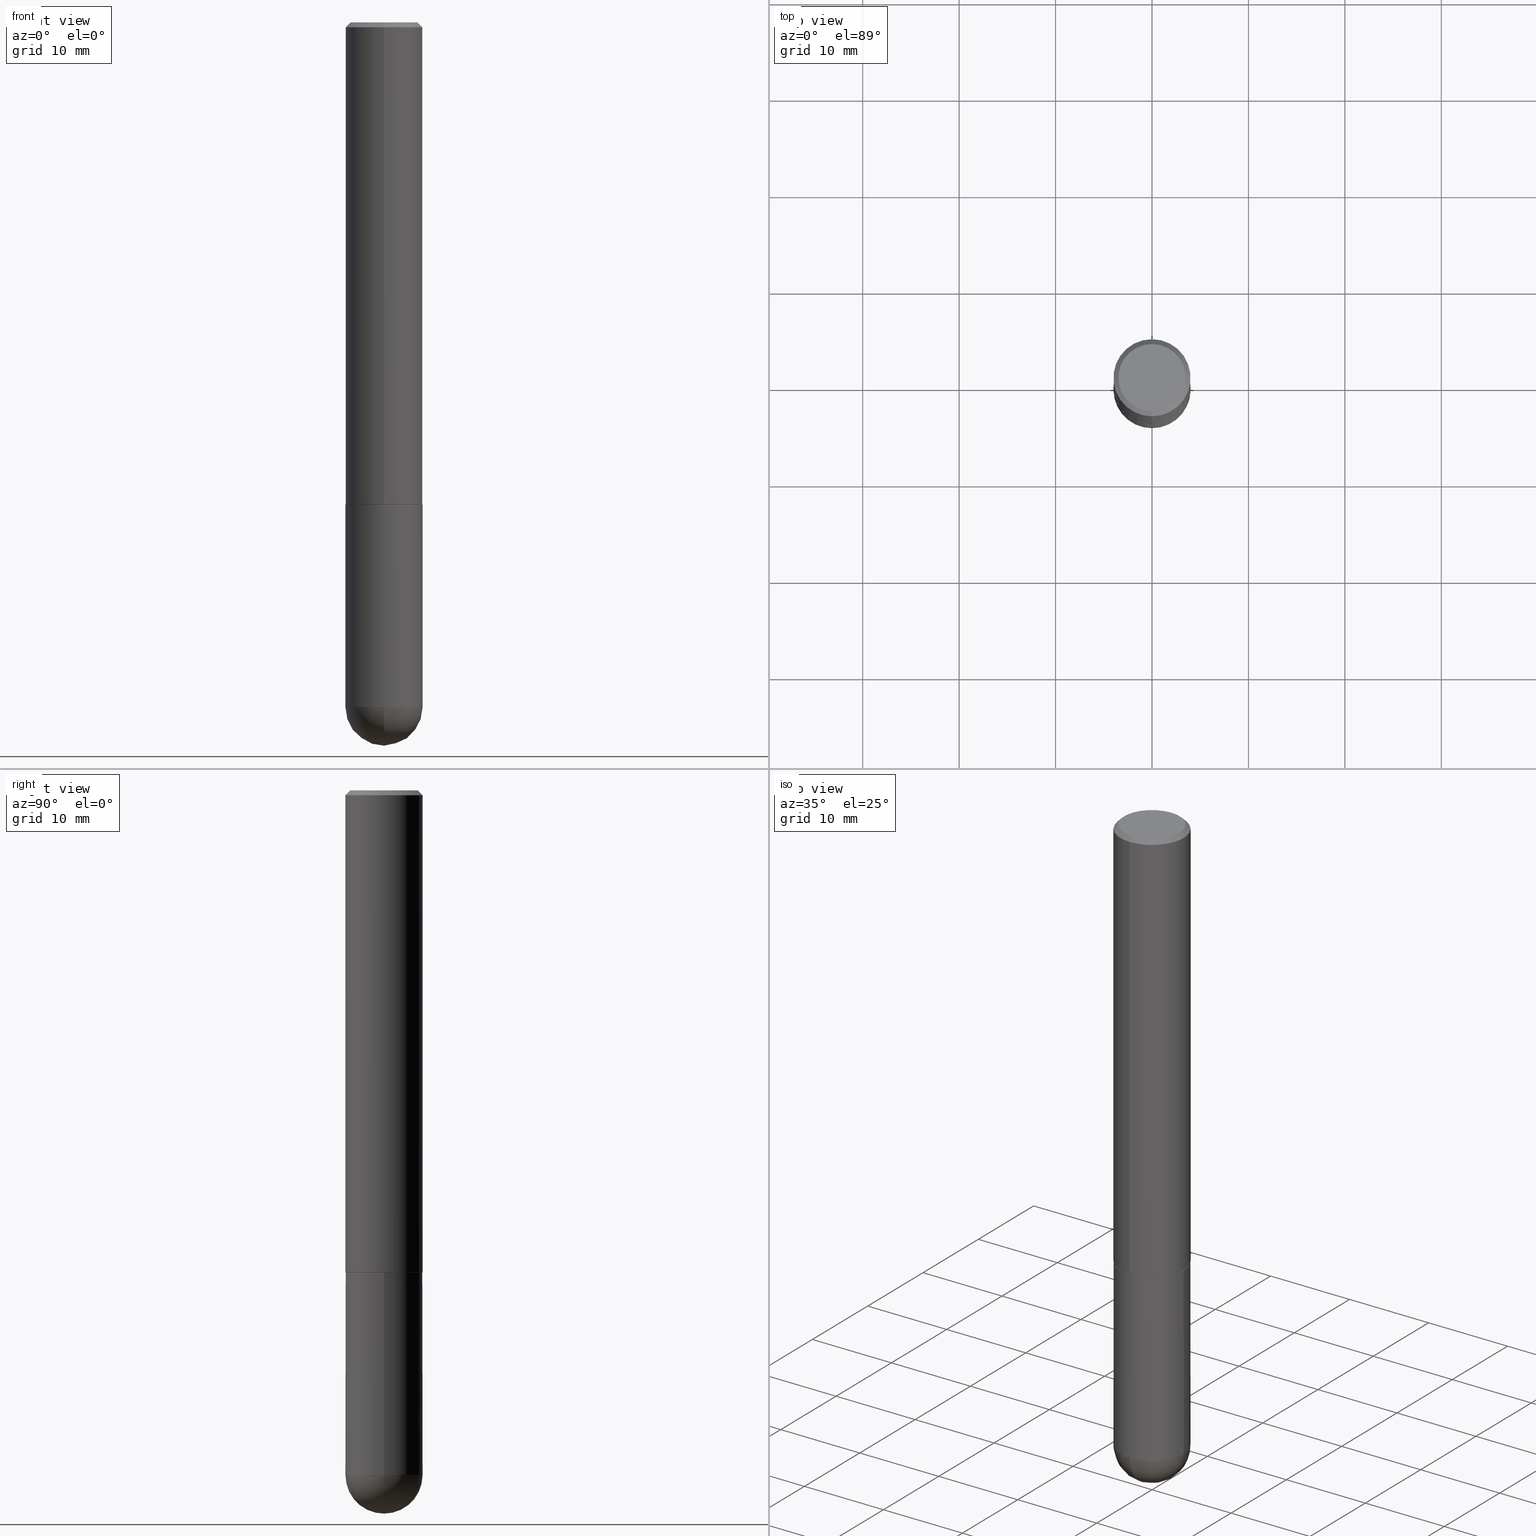
[diagram: canonical four-view strip — front | top / right | iso, engineering-drawing reading convention]
A machine part, canonical four-view strip (front | top / right | iso — engineering-drawing reading convention). The complete STEP part file that produces these views, byte-faithful:
ISO-10303-21;
HEADER;
FILE_DESCRIPTION (( 'STEP AP203' ),
    '1' );
FILE_NAME ('70535.STEP',
    '2024-04-10T12:34:35',
    ( '' ),
    ( '' ),
    'SwSTEP 2.0',
    'SolidWorks 2023',
    '' );
FILE_SCHEMA (( 'CONFIG_CONTROL_DESIGN' ));
ENDSEC;

DATA;
#1 = AXIS2_PLACEMENT_3D ( 'NONE', #222, #130, #410 ) ;
#2 = COORDINATED_UNIVERSAL_TIME_OFFSET ( 5, 0, .BEHIND. ) ;
#3 = DIRECTION ( 'NONE',  ( -2.454661074152089195E-29, 3.478317487923067824E-15, 1.000000000000000000 ) ) ;
#4 = DIRECTION ( 'NONE',  ( -2.454661074152089475E-29, 3.478317487923067824E-15, 1.000000000000000000 ) ) ;
#5 = EDGE_CURVE ( 'NONE', #244, #315, #240, .T. ) ;
#6 = LINE ( 'NONE', #11, #113 ) ;
#7 = CARTESIAN_POINT ( 'NONE',  ( 6.730951768431413431E-46, -9.537930711916713162E-32, -2.742110444211316312E-17 ) ) ;
#8 = ORIENTED_EDGE ( 'NONE', *, *, #33, .T. ) ;
#9 = DIRECTION ( 'NONE',  ( 6.982962677686265922E-15, 1.000000000000000000, -3.469013325287946588E-15 ) ) ;
#10 = COORDINATED_UNIVERSAL_TIME_OFFSET ( 5, 0, .BEHIND. ) ;
#11 = CARTESIAN_POINT ( 'NONE',  ( -0.1575000000000000011, 1.119104808822157801E-15, -7.747322767151475583E-30 ) ) ;
#12 = DIRECTION ( 'NONE',  ( -2.454661074152089475E-29, 3.478317487923067824E-15, 1.000000000000000000 ) ) ;
#13 = ADVANCED_FACE ( 'NONE', ( #74 ), #187, .T. ) ;
#14 = ADVANCED_FACE ( 'NONE', ( #236 ), #273, .T. ) ;
#15 = DIRECTION ( 'NONE',  ( -2.454661074152089475E-29, 3.478317487923067824E-15, 1.000000000000000000 ) ) ;
#16 = DIRECTION ( 'NONE',  ( -6.982962677686264344E-15, -1.000000000000000000, 3.478317487923067824E-15 ) ) ;
#17 = DIRECTION ( 'NONE',  ( -2.454661074152089475E-29, 3.478317487923067824E-15, 1.000000000000000000 ) ) ;
#18 = AXIS2_PLACEMENT_3D ( 'NONE', #310, #208, #334 ) ;
#19 = AXIS2_PLACEMENT_3D ( 'NONE', #387, #230, #167 ) ;
#20 = ORIENTED_EDGE ( 'NONE', *, *, #337, .T. ) ;
#21 = ORIENTED_EDGE ( 'NONE', *, *, #359, .T. ) ;
#22 = DIRECTION ( 'NONE',  ( -2.445468806185136597E-29, 3.491481338843145583E-15, 1.000000000000000000 ) ) ;
#23 = ORIENTED_EDGE ( 'NONE', *, *, #33, .F. ) ;
#24 = EDGE_CURVE ( 'NONE', #49, #247, #154, .T. ) ;
#25 = FACE_OUTER_BOUND ( 'NONE', #248, .T. ) ;
#26 = AXIS2_PLACEMENT_3D ( 'NONE', #221, #263, #116 ) ;
#27 = ADVANCED_FACE ( 'NONE', ( #373 ), #301, .T. ) ;
#28 = LOCAL_TIME ( 8, 34, 35.00000000000000000, #381 ) ;
#29 = ORIENTED_EDGE ( 'NONE', *, *, #391, .T. ) ;
#30 = CARTESIAN_POINT ( 'NONE',  ( 1.099816621735586889E-15, 0.1574999999999998901, -0.02000000000000057981 ) ) ;
#31 = CIRCLE ( 'NONE', #265, 0.1575000000000003064 ) ;
#32 = AXIS2_PLACEMENT_3D ( 'NONE', #83, #384, #331 ) ;
#33 = EDGE_CURVE ( 'NONE', #313, #139, #196, .T. ) ;
#34 = CARTESIAN_POINT ( 'NONE',  ( 6.835818953929311707E-29, -9.759737786468243605E-15, -2.795299999999999674 ) ) ;
#35 = PERSON_AND_ORGANIZATION_ROLE ( 'classification_officer' ) ;
#36 = CARTESIAN_POINT ( 'NONE',  ( 1.099816621735654731E-15, 0.1574999999999901201, -2.795300000000000118 ) ) ;
#37 = ORIENTED_EDGE ( 'NONE', *, *, #242, .T. ) ;
#38 = CC_DESIGN_PERSON_AND_ORGANIZATION_ASSIGNMENT ( #256, #226, ( #232 ) ) ;
#39 = CLOSED_SHELL ( 'NONE', ( #357, #97, #129, #193, #27, #14, #375, #361 ) ) ;
#40 = SHAPE_DEFINITION_REPRESENTATION ( #319, #158 ) ;
#41 = DIRECTION ( 'NONE',  ( -2.445468806185136597E-29, 3.491481338843145583E-15, 1.000000000000000000 ) ) ;
#42 = DIRECTION ( 'NONE',  ( -6.982962677686267499E-15, -1.000000000000000000, 3.491179544618867914E-15 ) ) ;
#43 = PERSON_AND_ORGANIZATION_ROLE ( 'creator' ) ;
#44 = FACE_OUTER_BOUND ( 'NONE', #352, .T. ) ;
#45 = ORIENTED_EDGE ( 'NONE', *, *, #380, .F. ) ;
#46 = CARTESIAN_POINT ( 'NONE',  ( -1.011923454671300448E-15, -0.1375000000000000111, 4.508475501473086973E-16 ) ) ;
#47 = COORDINATED_UNIVERSAL_TIME_OFFSET ( 5, 0, .BEHIND. ) ;
#48 = CARTESIAN_POINT ( 'NONE',  ( 1.115552095143405811E-15, 0.1564999999999930891, -1.968500000000000583 ) ) ;
#49 = VERTEX_POINT ( 'NONE', #281 ) ;
#50 = FACE_OUTER_BOUND ( 'NONE', #162, .T. ) ;
#51 = CIRCLE ( 'NONE', #104, 0.1575000000000001954 ) ;
#52 = CARTESIAN_POINT ( 'NONE',  ( -1.099816621735539951E-15, -0.1575000000000070233, -1.967499999999999138 ) ) ;
#53 = APPROVAL_PERSON_ORGANIZATION ( #114, #305, #348 ) ;
#54 = CARTESIAN_POINT ( 'NONE',  ( 4.829545663394234809E-29, -6.843589657488634193E-15, -1.967499999999999805 ) ) ;
#55 = UNCERTAINTY_MEASURE_WITH_UNIT (LENGTH_MEASURE( 1.000000000000000082E-05 ), #253, 'distance_accuracy_value', 'NONE');
#56 = CARTESIAN_POINT ( 'NONE',  ( -0.1575000000000000011, -7.197254592168330052E-15, -2.795299999999999674 ) ) ;
#57 = ORIENTED_EDGE ( 'NONE', *, *, #364, .T. ) ;
#58 = AXIS2_PLACEMENT_3D ( 'NONE', #385, #100, #231 ) ;
#59 = VERTEX_POINT ( 'NONE', #383 ) ;
#60 = CYLINDRICAL_SURFACE ( 'NONE', #112, 0.1575000000000000011 ) ;
#61 = CC_DESIGN_DATE_AND_TIME_ASSIGNMENT ( #297, #261, ( #398 ) ) ;
#62 = CARTESIAN_POINT ( 'NONE',  ( 4.909322148304186412E-31, -6.956634975846147087E-17, -0.02000000000000003511 ) ) ;
#63 = ORIENTED_EDGE ( 'NONE', *, *, #246, .T. ) ;
#64 =( LENGTH_UNIT ( ) NAMED_UNIT ( * ) SI_UNIT ( $, .METRE. ) );
#65 = AXIS2_PLACEMENT_3D ( 'NONE', #170, #356, #389 ) ;
#66 = ORIENTED_EDGE ( 'NONE', *, *, #391, .F. ) ;
#67 = EDGE_CURVE ( 'NONE', #405, #111, #395, .T. ) ;
#68 = PERSON_AND_ORGANIZATION ( #94, #91 ) ;
#69 = DIRECTION ( 'NONE',  ( -2.454661074152089475E-29, 3.478317487923067824E-15, 1.000000000000000000 ) ) ;
#70 = CIRCLE ( 'NONE', #300, 0.1575000000000000011 ) ;
#71 = PERSON_AND_ORGANIZATION ( #94, #91 ) ;
#72 = DIRECTION ( 'NONE',  ( -2.454661074152089475E-29, 3.478317487923067824E-15, 1.000000000000000000 ) ) ;
#73 = EDGE_CURVE ( 'NONE', #313, #147, #90, .T. ) ;
#74 = FACE_OUTER_BOUND ( 'NONE', #121, .T. ) ;
#75 = DATE_AND_TIME ( #320, #105 ) ;
#76 = EDGE_LOOP ( 'NONE', ( #369, #21, #308, #329, #366 ) ) ;
#77 = CONICAL_SURFACE ( 'NONE', #306, 0.1574999999999999456, 0.7853981633974471688 ) ;
#78 = DATE_TIME_ROLE ( 'classification_date' ) ;
#79 = DIRECTION ( 'NONE',  ( -2.445468806185136597E-29, 3.491481338843145583E-15, 1.000000000000000000 ) ) ;
#80 = DIRECTION ( 'NONE',  ( -2.445468806185136597E-29, 3.491481338843145583E-15, 1.000000000000000000 ) ) ;
#81 = MANIFOLD_SOLID_BREP ( 'Body-Move/Copy2[1]', #179 ) ;
#82 = FACE_OUTER_BOUND ( 'NONE', #349, .T. ) ;
#83 = CARTESIAN_POINT ( 'NONE',  ( 9.601573681818614755E-16, 0.1375000000000000111, -4.919792068104783803E-16 ) ) ;
#84 = LINE ( 'NONE', #143, #141 ) ;
#85 = VECTOR ( 'NONE', #393, 39.37007874015748143 ) ;
#86 = APPROVAL_PERSON_ORGANIZATION ( #341, #286, #103 ) ;
#87 = PLANE ( 'NONE',  #18 ) ;
#88 = EDGE_CURVE ( 'NONE', #147, #95, #199, .T. ) ;
#89 = EDGE_LOOP ( 'NONE', ( #220, #63, #29, #128 ) ) ;
#90 = CIRCLE ( 'NONE', #217, 0.1375000000000000111 ) ;
#91 = ORGANIZATION ( 'UNSPECIFIED', 'UNSPECIFIED', '' ) ;
#92 = EDGE_CURVE ( 'NONE', #95, #139, #171, .T. ) ;
#93 = ORIENTED_EDGE ( 'NONE', *, *, #364, .F. ) ;
#94 = PERSON ( 'UNSPECIFIED', 'UNSPECIFIED', 'UNSPECIFIED', ('UNSPECIFIED'), ('UNSPECIFIED'), ('UNSPECIFIED') ) ;
#95 = VERTEX_POINT ( 'NONE', #200 ) ;
#96 = APPLICATION_PROTOCOL_DEFINITION ( 'international standard', 'config_control_design', 1994, #178 ) ;
#97 = ADVANCED_FACE ( 'NONE', ( #82 ), #183, .T. ) ;
#98 = CARTESIAN_POINT ( 'NONE',  ( 0.1575000000000000011, -1.099816621735586889E-15, 7.679978421878598033E-30 ) ) ;
#99 = CONICAL_SURFACE ( 'NONE', #145, 0.1564999999999999447, 0.7853981633973970977 ) ;
#100 = DIRECTION ( 'NONE',  ( -2.445468806185136597E-29, 3.491481338843145583E-15, 1.000000000000000000 ) ) ;
#101 = DIRECTION ( 'NONE',  ( 4.937700262164541731E-15, 0.7071067811865442421, -0.7071067811865507924 ) ) ;
#102 = MECHANICAL_CONTEXT ( 'NONE', #314, 'mechanical' ) ;
#103 = APPROVAL_ROLE ( '' ) ;
#104 = AXIS2_PLACEMENT_3D ( 'NONE', #269, #298, #292 ) ;
#105 = LOCAL_TIME ( 8, 34, 35.00000000000000000, #47 ) ;
#106 = DATE_AND_TIME ( #190, #302 ) ;
#107 = DIRECTION ( 'NONE',  ( -6.982962677686265922E-15, -1.000000000000000000, 3.478317487923067824E-15 ) ) ;
#108 = DIRECTION ( 'NONE',  ( -6.982962677686264344E-15, -1.000000000000000000, 3.478317487923067824E-15 ) ) ;
#109 = APPROVAL_STATUS ( 'not_yet_approved' ) ;
#110 = LINE ( 'NONE', #289, #225 ) ;
#111 = VERTEX_POINT ( 'NONE', #238 ) ;
#112 = AXIS2_PLACEMENT_3D ( 'NONE', #118, #271, #330 ) ;
#113 = VECTOR ( 'NONE', #382, 39.37007874015748143 ) ;
#114 = PERSON_AND_ORGANIZATION ( #94, #91 ) ;
#115 = FACE_OUTER_BOUND ( 'NONE', #335, .T. ) ;
#116 = DIRECTION ( 'NONE',  ( 6.982962677686265922E-15, 1.000000000000000000, -3.469013325287946588E-15 ) ) ;
#117 = DIRECTION ( 'NONE',  ( 1.000000000000000000, -6.982962677686265922E-15, 4.883557194083112340E-29 ) ) ;
#118 = CARTESIAN_POINT ( 'NONE',  ( 0.000000000000000000, 0.000000000000000000, 0.000000000000000000 ) ) ;
#119 = LINE ( 'NONE', #241, #277 ) ;
#120 = CC_DESIGN_APPROVAL ( #305, ( #232 ) ) ;
#121 = EDGE_LOOP ( 'NONE', ( #45, #270, #406, #131 ) ) ;
#122 = EDGE_CURVE ( 'NONE', #147, #313, #149, .T. ) ;
#123 = ORIENTED_EDGE ( 'NONE', *, *, #299, .T. ) ;
#124 = FACE_OUTER_BOUND ( 'NONE', #76, .T. ) ;
#125 = CARTESIAN_POINT ( 'NONE',  ( 4.909322148304186412E-31, -6.956634975846147087E-17, -0.02000000000000003511 ) ) ;
#126 = ORIENTED_EDGE ( 'NONE', *, *, #251, .T. ) ;
#127 = DIRECTION ( 'NONE',  ( -2.445468806185136877E-29, 3.491481338843145188E-15, 1.000000000000000000 ) ) ;
#128 = ORIENTED_EDGE ( 'NONE', *, *, #223, .F. ) ;
#129 = ADVANCED_FACE ( 'NONE', ( #25 ), #317, .T. ) ;
#130 = DIRECTION ( 'NONE',  ( 0.000000000000000000, 0.000000000000000000, 1.000000000000000000 ) ) ;
#131 = ORIENTED_EDGE ( 'NONE', *, *, #337, .F. ) ;
#132 = CARTESIAN_POINT ( 'NONE',  ( 1.029986994958724182E-15, 0.1375000000000000111, -5.056897590315349742E-16 ) ) ;
#133 = ORIENTED_EDGE ( 'NONE', *, *, #237, .F. ) ;
#134 = CC_DESIGN_PERSON_AND_ORGANIZATION_ASSIGNMENT ( #164, #43, ( #398 ) ) ;
#135 = CALENDAR_DATE ( 2024, 10, 4 ) ;
#136 = APPROVAL_ROLE ( '' ) ;
#137 = ORIENTED_EDGE ( 'NONE', *, *, #67, .F. ) ;
#138 = FACE_OUTER_BOUND ( 'NONE', #362, .T. ) ;
#139 = VERTEX_POINT ( 'NONE', #360 ) ;
#140 = ORIENTED_EDGE ( 'NONE', *, *, #92, .T. ) ;
#141 = VECTOR ( 'NONE', #279, 39.37007874015748143 ) ;
#142 = ORIENTED_EDGE ( 'NONE', *, *, #251, .F. ) ;
#143 = CARTESIAN_POINT ( 'NONE',  ( 1.119104808822158195E-15, 0.1575000000000000844, -5.478350043478835531E-16 ) ) ;
#144 = CARTESIAN_POINT ( 'NONE',  ( 6.504699176015425459E-29, -1.023392015460829390E-14, -2.795299999999999674 ) ) ;
#145 = AXIS2_PLACEMENT_3D ( 'NONE', #257, #72, #160 ) ;
#146 = ORIENTED_EDGE ( 'NONE', *, *, #325, .T. ) ;
#147 = VERTEX_POINT ( 'NONE', #46 ) ;
#148 = DIRECTION ( 'NONE',  ( 1.000000000000000000, -6.982962677686268288E-15, 0.000000000000000000 ) ) ;
#149 = CIRCLE ( 'NONE', #323, 0.1375000000000000111 ) ;
#150 = DIRECTION ( 'NONE',  ( -1.000000000000000000, 6.982962677686265922E-15, -4.883557194083112901E-29 ) ) ;
#151 = ADVANCED_FACE ( 'NONE', ( #311 ), #275, .T. ) ;
#152 = EDGE_LOOP ( 'NONE', ( #274, #372, #8, #278 ) ) ;
#153 = ORIENTED_EDGE ( 'NONE', *, *, #214, .T. ) ;
#154 = CIRCLE ( 'NONE', #58, 0.1575000000000000011 ) ;
#155 = LOCAL_TIME ( 8, 34, 35.00000000000000000, #10 ) ;
#156 = ADVANCED_FACE ( 'NONE', ( #50 ), #87, .F. ) ;
#157 = DATE_AND_TIME ( #322, #28 ) ;
#158 = ADVANCED_BREP_SHAPE_REPRESENTATION ( '70535', ( #81, #346, #1 ), #258 ) ;
#159 = PERSON_AND_ORGANIZATION ( #94, #91 ) ;
#160 = DIRECTION ( 'NONE',  ( -6.982962677686267499E-15, -1.000000000000000000, 3.491179544618867914E-15 ) ) ;
#161 = VECTOR ( 'NONE', #101, 39.37007874015748143 ) ;
#162 = EDGE_LOOP ( 'NONE', ( #216, #126 ) ) ;
#163 = CIRCLE ( 'NONE', #284, 0.1575000000000003064 ) ;
#164 = PERSON_AND_ORGANIZATION ( #94, #91 ) ;
#165 = DIRECTION ( 'NONE',  ( 1.000000000000000000, -6.982962677686261977E-15, 0.000000000000000000 ) ) ;
#166 = CARTESIAN_POINT ( 'NONE',  ( 6.835818953929311707E-29, -9.759737786468243605E-15, -2.795299999999999674 ) ) ;
#167 = DIRECTION ( 'NONE',  ( 1.000000000000000000, -6.982962677686261977E-15, 0.000000000000000000 ) ) ;
#168 = VERTEX_POINT ( 'NONE', #172 ) ;
#169 = CARTESIAN_POINT ( 'NONE',  ( 6.730951768431413431E-46, -9.537930711916713162E-32, -2.742110444211316312E-17 ) ) ;
#170 = CARTESIAN_POINT ( 'NONE',  ( 4.832000324468388368E-29, -6.847067974976558820E-15, -1.968500000000000139 ) ) ;
#171 = CIRCLE ( 'NONE', #312, 0.1574999999999999456 ) ;
#172 = CARTESIAN_POINT ( 'NONE',  ( 0.1575000000000000011, -9.416176022726072770E-15, -2.795299999999999674 ) ) ;
#173 = AXIS2_PLACEMENT_3D ( 'NONE', #34, #285, #184 ) ;
#174 = CIRCLE ( 'NONE', #365, 0.1575000000000000011 ) ;
#175 = PLANE ( 'NONE',  #377 ) ;
#176 = CC_DESIGN_PERSON_AND_ORGANIZATION_ASSIGNMENT ( #71, #234, ( #232 ) ) ;
#177 = DIRECTION ( 'NONE',  ( -2.454661074152089475E-29, 3.478317487923067824E-15, 1.000000000000000000 ) ) ;
#178 = APPLICATION_CONTEXT ( 'configuration controlled 3d designs of mechanical parts and assemblies' ) ;
#179 = CLOSED_SHELL ( 'NONE', ( #254, #151, #13, #156, #210 ) ) ;
#180 = ORIENTED_EDGE ( 'NONE', *, *, #242, .F. ) ;
#181 = DIRECTION ( 'NONE',  ( 5.024295867787803643E-15, 0.7071067811865135999, 0.7071067811865812125 ) ) ;
#182 = COORDINATED_UNIVERSAL_TIME_OFFSET ( 5, 0, .BEHIND. ) ;
#183 = CYLINDRICAL_SURFACE ( 'NONE', #283, 0.1575000000000000844 ) ;
#184 = DIRECTION ( 'NONE',  ( 1.000000000000000000, -6.982962677686261977E-15, 0.000000000000000000 ) ) ;
#185 = CC_DESIGN_PERSON_AND_ORGANIZATION_ASSIGNMENT ( #287, #35, ( #388 ) ) ;
#186 = ORIENTED_EDGE ( 'NONE', *, *, #92, .F. ) ;
#187 = SPHERICAL_SURFACE ( 'NONE', #26, 0.1575000000000003064 ) ;
#188 = PERSON_AND_ORGANIZATION_ROLE ( 'design_owner' ) ;
#189 = CIRCLE ( 'NONE', #243, 0.1575000000000001954 ) ;
#190 = CALENDAR_DATE ( 2024, 10, 4 ) ;
#191 = APPROVAL_DATE_TIME ( #106, #286 ) ;
#192 = DIRECTION ( 'NONE',  ( -4.937700262164294818E-15, -0.7071067811865088260, 0.7071067811865862085 ) ) ;
#193 = ADVANCED_FACE ( 'NONE', ( #233 ), #77, .T. ) ;
#194 = CARTESIAN_POINT ( 'NONE',  ( 4.832000324468388368E-29, -6.847067974976558820E-15, -1.968500000000000139 ) ) ;
#195 = AXIS2_PLACEMENT_3D ( 'NONE', #144, #150, #9 ) ;
#196 = LINE ( 'NONE', #30, #161 ) ;
#197 = CC_DESIGN_PERSON_AND_ORGANIZATION_ASSIGNMENT ( #68, #188, ( #280 ) ) ;
#198 = APPROVAL_DATE_TIME ( #157, #353 ) ;
#199 = LINE ( 'NONE', #326, #85 ) ;
#200 = CARTESIAN_POINT ( 'NONE',  ( -1.080528434649015385E-15, -0.1575000000000000289, -0.01999999999999948694 ) ) ;
#201 = DIRECTION ( 'NONE',  ( -7.105427357601000281E-15, -1.000000000000000000, 0.000000000000000000 ) ) ;
#202 = ORIENTED_EDGE ( 'NONE', *, *, #122, .F. ) ;
#203 = DIRECTION ( 'NONE',  ( 2.454661074152089475E-29, -3.478317487923067824E-15, -1.000000000000000000 ) ) ;
#204 = PLANE ( 'NONE',  #32 ) ;
#205 = AXIS2_PLACEMENT_3D ( 'NONE', #293, #15, #316 ) ;
#206 = DIRECTION ( 'NONE',  ( 6.982962677686265922E-15, 1.000000000000000000, -3.469013325287954477E-15 ) ) ;
#207 = APPROVAL_PERSON_ORGANIZATION ( #159, #353, #136 ) ;
#208 = DIRECTION ( 'NONE',  ( 2.438088387897960049E-29, -3.491481338843145188E-15, -1.000000000000000000 ) ) ;
#209 = ORIENTED_EDGE ( 'NONE', *, *, #276, .F. ) ;
#210 = ADVANCED_FACE ( 'NONE', ( #394 ), #60, .T. ) ;
#211 = CIRCLE ( 'NONE', #351, 0.1574999999999999456 ) ;
#212 = ORIENTED_EDGE ( 'NONE', *, *, #67, .T. ) ;
#213 = DIRECTION ( 'NONE',  ( -6.982962677686265922E-15, -1.000000000000000000, 3.478317487923068219E-15 ) ) ;
#214 = EDGE_CURVE ( 'NONE', #407, #139, #84, .T. ) ;
#215 = ORIENTED_EDGE ( 'NONE', *, *, #246, .F. ) ;
#216 = ORIENTED_EDGE ( 'NONE', *, *, #24, .T. ) ;
#217 = AXIS2_PLACEMENT_3D ( 'NONE', #7, #4, #108 ) ;
#218 =( NAMED_UNIT ( * ) PLANE_ANGLE_UNIT ( ) SI_UNIT ( $, .RADIAN. ) );
#219 = CC_DESIGN_APPROVAL ( #353, ( #388 ) ) ;
#220 = ORIENTED_EDGE ( 'NONE', *, *, #214, .F. ) ;
#221 = CARTESIAN_POINT ( 'NONE',  ( 6.504699176015425459E-29, -1.023392015460829390E-14, -2.795299999999999674 ) ) ;
#222 = CARTESIAN_POINT ( 'NONE',  ( 0.000000000000000000, 0.000000000000000000, 0.000000000000000000 ) ) ;
#223 = EDGE_CURVE ( 'NONE', #139, #95, #211, .T. ) ;
#224 = VECTOR ( 'NONE', #127, 39.37007874015748143 ) ;
#225 = VECTOR ( 'NONE', #192, 39.37007874015748143 ) ;
#226 = PERSON_AND_ORGANIZATION_ROLE ( 'design_supplier' ) ;
#227 = CARTESIAN_POINT ( 'NONE',  ( 6.504699176015425459E-29, -1.023392015460829390E-14, -2.795299999999999674 ) ) ;
#228 = ORIENTED_EDGE ( 'NONE', *, *, #294, .T. ) ;
#229 = DIMENSIONAL_EXPONENTS ( 1.000000000000000000, 0.000000000000000000, 0.000000000000000000, 0.000000000000000000, 0.000000000000000000, 0.000000000000000000, 0.000000000000000000 ) ;
#230 = DIRECTION ( 'NONE',  ( -2.445468806185136597E-29, 3.491481338843145583E-15, 1.000000000000000000 ) ) ;
#231 = DIRECTION ( 'NONE',  ( 1.000000000000000000, -6.982962677686268288E-15, 0.000000000000000000 ) ) ;
#232 = PRODUCT_DEFINITION_FORMATION_WITH_SPECIFIED_SOURCE ( 'ANY', '', #280, .NOT_KNOWN. ) ;
#233 = FACE_OUTER_BOUND ( 'NONE', #152, .T. ) ;
#234 = PERSON_AND_ORGANIZATION_ROLE ( 'creator' ) ;
#235 = CARTESIAN_POINT ( 'NONE',  ( 4.832000324468388368E-29, -6.847067974976558820E-15, -1.968500000000000139 ) ) ;
#236 = FACE_OUTER_BOUND ( 'NONE', #249, .T. ) ;
#237 = EDGE_CURVE ( 'NONE', #59, #340, #31, .T. ) ;
#238 = CARTESIAN_POINT ( 'NONE',  ( -1.119104808822091931E-15, -0.1575000000000101319, -2.795299999999998786 ) ) ;
#239 = DIRECTION ( 'NONE',  ( -6.982962677686265922E-15, -1.000000000000000000, 3.469013325287954477E-15 ) ) ;
#240 = CIRCLE ( 'NONE', #65, 0.1564999999999999447 ) ;
#241 = CARTESIAN_POINT ( 'NONE',  ( 1.111999381464604519E-15, 0.1564999999999930891, -1.968500000000000583 ) ) ;
#242 = EDGE_CURVE ( 'NONE', #315, #407, #119, .T. ) ;
#243 = AXIS2_PLACEMENT_3D ( 'NONE', #54, #177, #304 ) ;
#244 = VERTEX_POINT ( 'NONE', #338 ) ;
#245 = CYLINDRICAL_SURFACE ( 'NONE', #376, 0.1575000000000000011 ) ;
#246 = EDGE_CURVE ( 'NONE', #407, #339, #189, .T. ) ;
#247 = VERTEX_POINT ( 'NONE', #354 ) ;
#248 = EDGE_LOOP ( 'NONE', ( #202, #397, #140, #23 ) ) ;
#249 = EDGE_LOOP ( 'NONE', ( #180, #228, #57, #215 ) ) ;
#250 = CIRCLE ( 'NONE', #19, 0.1575000000000000011 ) ;
#251 = EDGE_CURVE ( 'NONE', #247, #49, #70, .T. ) ;
#252 = DIRECTION ( 'NONE',  ( -2.454661074152089475E-29, 3.478317487923067824E-15, 1.000000000000000000 ) ) ;
#253 =( CONVERSION_BASED_UNIT ( 'INCH', #408 ) LENGTH_UNIT ( ) NAMED_UNIT ( #229 ) );
#254 = ADVANCED_FACE ( 'NONE', ( #124 ), #245, .T. ) ;
#255 = LINE ( 'NONE', #98, #224 ) ;
#256 = PERSON_AND_ORGANIZATION ( #94, #91 ) ;
#257 = CARTESIAN_POINT ( 'NONE',  ( 4.832000324468388368E-29, -6.847067974976558820E-15, -1.968500000000000139 ) ) ;
#258 =( GEOMETRIC_REPRESENTATION_CONTEXT ( 3 ) GLOBAL_UNCERTAINTY_ASSIGNED_CONTEXT ( ( #55 ) ) GLOBAL_UNIT_ASSIGNED_CONTEXT ( ( #253, #218, #345 ) ) REPRESENTATION_CONTEXT ( 'NONE', 'WORKASPACE' ) );
#259 = PRODUCT_RELATED_PRODUCT_CATEGORY ( 'detail', '', ( #280 ) ) ;
#260 = ORIENTED_EDGE ( 'NONE', *, *, #5, .T. ) ;
#261 = DATE_TIME_ROLE ( 'creation_date' ) ;
#262 = CARTESIAN_POINT ( 'NONE',  ( 6.835818953929311707E-29, -9.759737786468243605E-15, -2.795299999999999674 ) ) ;
#263 = DIRECTION ( 'NONE',  ( -1.000000000000000000, 6.982962677686265922E-15, -4.883557194083112901E-29 ) ) ;
#264 = APPROVAL_DATE_TIME ( #75, #305 ) ;
#265 = AXIS2_PLACEMENT_3D ( 'NONE', #268, #117, #403 ) ;
#266 = ORIENTED_EDGE ( 'NONE', *, *, #294, .F. ) ;
#267 = CC_DESIGN_SECURITY_CLASSIFICATION ( #388, ( #232 ) ) ;
#268 = CARTESIAN_POINT ( 'NONE',  ( 6.504699176015425459E-29, -1.023392015460829390E-14, -2.795299999999999674 ) ) ;
#269 = CARTESIAN_POINT ( 'NONE',  ( 4.829545663394234809E-29, -6.843589657488634193E-15, -1.967499999999999805 ) ) ;
#270 = ORIENTED_EDGE ( 'NONE', *, *, #237, .T. ) ;
#271 = DIRECTION ( 'NONE',  ( -2.445468806185136597E-29, 3.491481338843145583E-15, 1.000000000000000000 ) ) ;
#272 = CARTESIAN_POINT ( 'NONE',  ( 4.909322148304186412E-31, -6.956634975846147087E-17, -0.02000000000000003511 ) ) ;
#273 = CONICAL_SURFACE ( 'NONE', #288, 0.1564999999999999447, 0.7853981633973970977 ) ;
#274 = ORIENTED_EDGE ( 'NONE', *, *, #88, .F. ) ;
#275 = SPHERICAL_SURFACE ( 'NONE', #195, 0.1575000000000003064 ) ;
#276 = EDGE_CURVE ( 'NONE', #340, #405, #344, .T. ) ;
#277 = VECTOR ( 'NONE', #181, 39.37007874015748854 ) ;
#278 = ORIENTED_EDGE ( 'NONE', *, *, #223, .T. ) ;
#279 = DIRECTION ( 'NONE',  ( -2.454661074152089475E-29, 3.478317487923067824E-15, 1.000000000000000000 ) ) ;
#280 = PRODUCT ( '70535', '70535', '', ( #102 ) ) ;
#281 = CARTESIAN_POINT ( 'NONE',  ( 0.1575000000000000011, -7.972797637248318399E-15, -1.968499999999999694 ) ) ;
#282 = DESIGN_CONTEXT ( 'detailed design', #178, 'design' ) ;
#283 = AXIS2_PLACEMENT_3D ( 'NONE', #296, #17, #213 ) ;
#284 = AXIS2_PLACEMENT_3D ( 'NONE', #227, #355, #201 ) ;
#285 = DIRECTION ( 'NONE',  ( -2.445468806185136597E-29, 3.491481338843145583E-15, 1.000000000000000000 ) ) ;
#286 = APPROVAL ( #318, 'UNSPECIFIED' ) ;
#287 = PERSON_AND_ORGANIZATION ( #94, #91 ) ;
#288 = AXIS2_PLACEMENT_3D ( 'NONE', #194, #252, #42 ) ;
#289 = CARTESIAN_POINT ( 'NONE',  ( -1.092833659057852162E-15, -0.1565000000000068281, -1.968499999999999472 ) ) ;
#290 = DIRECTION ( 'NONE',  ( 1.000000000000000000, -6.982962677686261977E-15, 0.000000000000000000 ) ) ;
#291 = CALENDAR_DATE ( 2024, 10, 4 ) ;
#292 = DIRECTION ( 'NONE',  ( -6.982962677686265922E-15, -1.000000000000000000, 3.469013325287948955E-15 ) ) ;
#293 = CARTESIAN_POINT ( 'NONE',  ( 0.000000000000000000, 0.000000000000000000, 0.000000000000000000 ) ) ;
#294 = EDGE_CURVE ( 'NONE', #315, #244, #401, .T. ) ;
#295 = ORIENTED_EDGE ( 'NONE', *, *, #359, .F. ) ;
#296 = CARTESIAN_POINT ( 'NONE',  ( 0.000000000000000000, 0.000000000000000000, 0.000000000000000000 ) ) ;
#297 = DATE_AND_TIME ( #135, #155 ) ;
#298 = DIRECTION ( 'NONE',  ( -2.454661074152089475E-29, 3.478317487923067824E-15, 1.000000000000000000 ) ) ;
#299 = EDGE_CURVE ( 'NONE', #168, #49, #255, .T. ) ;
#300 = AXIS2_PLACEMENT_3D ( 'NONE', #399, #22, #148 ) ;
#301 = CYLINDRICAL_SURFACE ( 'NONE', #205, 0.1575000000000000844 ) ;
#302 = LOCAL_TIME ( 8, 34, 35.00000000000000000, #182 ) ;
#303 = DIRECTION ( 'NONE',  ( 6.982962677686265922E-15, 1.000000000000000000, -3.469013325287954477E-15 ) ) ;
#304 = DIRECTION ( 'NONE',  ( -6.982962677686265922E-15, -1.000000000000000000, 3.469013325287948955E-15 ) ) ;
#305 = APPROVAL ( #378, 'UNSPECIFIED' ) ;
#306 = AXIS2_PLACEMENT_3D ( 'NONE', #272, #203, #303 ) ;
#307 = LOCAL_TIME ( 8, 34, 35.00000000000000000, #2 ) ;
#308 = ORIENTED_EDGE ( 'NONE', *, *, #24, .F. ) ;
#309 = ORIENTED_EDGE ( 'NONE', *, *, #380, .T. ) ;
#310 = CARTESIAN_POINT ( 'NONE',  ( 1.099816621735634812E-15, 0.1574999999999931177, -1.968500000000000361 ) ) ;
#311 = FACE_OUTER_BOUND ( 'NONE', #321, .T. ) ;
#312 = AXIS2_PLACEMENT_3D ( 'NONE', #125, #12, #358 ) ;
#313 = VERTEX_POINT ( 'NONE', #132 ) ;
#314 = APPLICATION_CONTEXT ( 'configuration controlled 3d designs of mechanical parts and assemblies' ) ;
#315 = VERTEX_POINT ( 'NONE', #48 ) ;
#316 = DIRECTION ( 'NONE',  ( -6.982962677686265922E-15, -1.000000000000000000, 3.478317487923068219E-15 ) ) ;
#317 = CONICAL_SURFACE ( 'NONE', #386, 0.1574999999999999456, 0.7853981633974471688 ) ;
#318 = APPROVAL_STATUS ( 'not_yet_approved' ) ;
#319 = PRODUCT_DEFINITION_SHAPE ( 'NONE', 'NONE',  #398 ) ;
#320 = CALENDAR_DATE ( 2024, 10, 4 ) ;
#321 = EDGE_LOOP ( 'NONE', ( #133, #309, #137, #209 ) ) ;
#322 = CALENDAR_DATE ( 2024, 10, 4 ) ;
#323 = AXIS2_PLACEMENT_3D ( 'NONE', #169, #327, #16 ) ;
#324 = ORIENTED_EDGE ( 'NONE', *, *, #325, .F. ) ;
#325 = EDGE_CURVE ( 'NONE', #339, #407, #51, .T. ) ;
#326 = CARTESIAN_POINT ( 'NONE',  ( -1.080528434649015385E-15, -0.1575000000000000289, -0.01999999999999948694 ) ) ;
#327 = DIRECTION ( 'NONE',  ( -2.454661074152089475E-29, 3.478317487923067824E-15, 1.000000000000000000 ) ) ;
#328 = LINE ( 'NONE', #412, #396 ) ;
#329 = ORIENTED_EDGE ( 'NONE', *, *, #299, .F. ) ;
#330 = DIRECTION ( 'NONE',  ( 1.000000000000000000, -6.982962677686265922E-15, 4.876176775795935232E-29 ) ) ;
#331 = DIRECTION ( 'NONE',  ( 6.982962677686265922E-15, 1.000000000000000000, -3.478317487923067824E-15 ) ) ;
#332 = AXIS2_PLACEMENT_3D ( 'NONE', #166, #79, #290 ) ;
#333 = DIRECTION ( 'NONE',  ( -2.454661074152089475E-29, 3.478317487923067824E-15, 1.000000000000000000 ) ) ;
#334 = DIRECTION ( 'NONE',  ( -1.000000000000000000, 6.982962677686265922E-15, -4.876176775795935793E-29 ) ) ;
#335 = EDGE_LOOP ( 'NONE', ( #343, #266 ) ) ;
#336 = CC_DESIGN_APPROVAL ( #286, ( #398 ) ) ;
#337 = EDGE_CURVE ( 'NONE', #111, #168, #174, .T. ) ;
#338 = CARTESIAN_POINT ( 'NONE',  ( -1.092833659057852162E-15, -0.1565000000000068281, -1.968499999999999472 ) ) ;
#339 = VERTEX_POINT ( 'NONE', #52 ) ;
#340 = VERTEX_POINT ( 'NONE', #36 ) ;
#341 = PERSON_AND_ORGANIZATION ( #94, #91 ) ;
#342 = ORIENTED_EDGE ( 'NONE', *, *, #122, .T. ) ;
#343 = ORIENTED_EDGE ( 'NONE', *, *, #5, .F. ) ;
#344 = CIRCLE ( 'NONE', #173, 0.1575000000000000011 ) ;
#345 =( NAMED_UNIT ( * ) SI_UNIT ( $, .STERADIAN. ) SOLID_ANGLE_UNIT ( ) );
#346 = MANIFOLD_SOLID_BREP ( 'Body-Move/Copy2[2]', #39 ) ;
#347 = SECURITY_CLASSIFICATION_LEVEL ( 'unclassified' ) ;
#348 = APPROVAL_ROLE ( '' ) ;
#349 = EDGE_LOOP ( 'NONE', ( #146, #153, #186, #66 ) ) ;
#350 = DATE_AND_TIME ( #291, #307 ) ;
#351 = AXIS2_PLACEMENT_3D ( 'NONE', #392, #333, #239 ) ;
#352 = EDGE_LOOP ( 'NONE', ( #402, #342 ) ) ;
#353 = APPROVAL ( #109, 'UNSPECIFIED' ) ;
#354 = CARTESIAN_POINT ( 'NONE',  ( -0.1575000000000000011, -7.197254592168330052E-15, -1.968499999999999694 ) ) ;
#355 = DIRECTION ( 'NONE',  ( -1.000000000000000000, 7.105427357601001070E-15, -4.926315508542082329E-29 ) ) ;
#356 = DIRECTION ( 'NONE',  ( -2.454661074152089475E-29, 3.478317487923067824E-15, 1.000000000000000000 ) ) ;
#357 = ADVANCED_FACE ( 'NONE', ( #138 ), #99, .T. ) ;
#358 = DIRECTION ( 'NONE',  ( -6.982962677686265922E-15, -1.000000000000000000, 3.469013325287954477E-15 ) ) ;
#359 = EDGE_CURVE ( 'NONE', #405, #247, #6, .T. ) ;
#360 = CARTESIAN_POINT ( 'NONE',  ( 1.099816621735586889E-15, 0.1574999999999998901, -0.02000000000000057981 ) ) ;
#361 = ADVANCED_FACE ( 'NONE', ( #44 ), #204, .F. ) ;
#362 = EDGE_LOOP ( 'NONE', ( #260, #37, #324, #93 ) ) ;
#363 = CARTESIAN_POINT ( 'NONE',  ( 1.119104808822183044E-15, 0.1574999999999933675, -1.967500000000000249 ) ) ;
#364 = EDGE_CURVE ( 'NONE', #244, #339, #110, .T. ) ;
#365 = AXIS2_PLACEMENT_3D ( 'NONE', #262, #41, #165 ) ;
#366 = ORIENTED_EDGE ( 'NONE', *, *, #374, .T. ) ;
#367 = CARTESIAN_POINT ( 'NONE',  ( 0.000000000000000000, 0.000000000000000000, 0.000000000000000000 ) ) ;
#368 = EDGE_LOOP ( 'NONE', ( #295, #212, #20, #123, #142 ) ) ;
#369 = ORIENTED_EDGE ( 'NONE', *, *, #276, .T. ) ;
#370 = APPLICATION_PROTOCOL_DEFINITION ( 'international standard', 'config_control_design', 1994, #314 ) ;
#371 = DIRECTION ( 'NONE',  ( -6.982962677686267499E-15, -1.000000000000000000, 3.491179544618867914E-15 ) ) ;
#372 = ORIENTED_EDGE ( 'NONE', *, *, #73, .F. ) ;
#373 = FACE_OUTER_BOUND ( 'NONE', #89, .T. ) ;
#374 = EDGE_CURVE ( 'NONE', #168, #340, #250, .T. ) ;
#375 = ADVANCED_FACE ( 'NONE', ( #115 ), #175, .F. ) ;
#376 = AXIS2_PLACEMENT_3D ( 'NONE', #367, #80, #409 ) ;
#377 = AXIS2_PLACEMENT_3D ( 'NONE', #235, #3, #107 ) ;
#378 = APPROVAL_STATUS ( 'not_yet_approved' ) ;
#379 = DIRECTION ( 'NONE',  ( -2.454661074152089475E-29, 3.478317487923067824E-15, 1.000000000000000000 ) ) ;
#380 = EDGE_CURVE ( 'NONE', #59, #111, #163, .T. ) ;
#381 = COORDINATED_UNIVERSAL_TIME_OFFSET ( 5, 0, .BEHIND. ) ;
#382 = DIRECTION ( 'NONE',  ( -2.445468806185136877E-29, 3.491481338843145188E-15, 1.000000000000000000 ) ) ;
#383 = CARTESIAN_POINT ( 'NONE',  ( 6.896594947516873652E-29, -1.077418437193280573E-14, -2.952799999999999869 ) ) ;
#384 = DIRECTION ( 'NONE',  ( 2.454661074152089195E-29, -3.478317487923067824E-15, -1.000000000000000000 ) ) ;
#385 = CARTESIAN_POINT ( 'NONE',  ( 4.813905344975440714E-29, -6.872981015512730918E-15, -1.968499999999999694 ) ) ;
#386 = AXIS2_PLACEMENT_3D ( 'NONE', #62, #390, #206 ) ;
#387 = CARTESIAN_POINT ( 'NONE',  ( 6.835818953929311707E-29, -9.759737786468243605E-15, -2.795299999999999674 ) ) ;
#388 = SECURITY_CLASSIFICATION ( '', '', #347 ) ;
#389 = DIRECTION ( 'NONE',  ( -6.982962677686267499E-15, -1.000000000000000000, 3.491179544618867914E-15 ) ) ;
#390 = DIRECTION ( 'NONE',  ( 2.454661074152089475E-29, -3.478317487923067824E-15, -1.000000000000000000 ) ) ;
#391 = EDGE_CURVE ( 'NONE', #339, #95, #328, .T. ) ;
#392 = CARTESIAN_POINT ( 'NONE',  ( 4.909322148304186412E-31, -6.956634975846147087E-17, -0.02000000000000003511 ) ) ;
#393 = DIRECTION ( 'NONE',  ( -4.851104656540957964E-15, -0.7071067811865491270, -0.7071067811865459074 ) ) ;
#394 = FACE_OUTER_BOUND ( 'NONE', #368, .T. ) ;
#395 = CIRCLE ( 'NONE', #332, 0.1575000000000000011 ) ;
#396 = VECTOR ( 'NONE', #379, 39.37007874015748143 ) ;
#397 = ORIENTED_EDGE ( 'NONE', *, *, #88, .T. ) ;
#398 = PRODUCT_DEFINITION ( 'UNKNOWN', '', #232, #282 ) ;
#399 = CARTESIAN_POINT ( 'NONE',  ( 4.813905344975440714E-29, -6.872981015512730918E-15, -1.968499999999999694 ) ) ;
#400 = AXIS2_PLACEMENT_3D ( 'NONE', #411, #69, #371 ) ;
#401 = CIRCLE ( 'NONE', #400, 0.1564999999999999447 ) ;
#402 = ORIENTED_EDGE ( 'NONE', *, *, #73, .T. ) ;
#403 = DIRECTION ( 'NONE',  ( 6.982962677686265133E-15, 1.000000000000000000, 0.000000000000000000 ) ) ;
#404 = CC_DESIGN_DATE_AND_TIME_ASSIGNMENT ( #350, #78, ( #388 ) ) ;
#405 = VERTEX_POINT ( 'NONE', #56 ) ;
#406 = ORIENTED_EDGE ( 'NONE', *, *, #374, .F. ) ;
#407 = VERTEX_POINT ( 'NONE', #363 ) ;
#408 = LENGTH_MEASURE_WITH_UNIT ( LENGTH_MEASURE( 0.02539999999999999897 ), #64 );
#409 = DIRECTION ( 'NONE',  ( 1.000000000000000000, -6.982962677686265922E-15, 4.876176775795935232E-29 ) ) ;
#410 = DIRECTION ( 'NONE',  ( 1.000000000000000000, 0.000000000000000000, 0.000000000000000000 ) ) ;
#411 = CARTESIAN_POINT ( 'NONE',  ( 4.832000324468388368E-29, -6.847067974976558820E-15, -1.968500000000000139 ) ) ;
#412 = CARTESIAN_POINT ( 'NONE',  ( -1.099816621735587480E-15, -0.1575000000000000844, 5.478350043478835531E-16 ) ) ;
ENDSEC;
END-ISO-10303-21;
